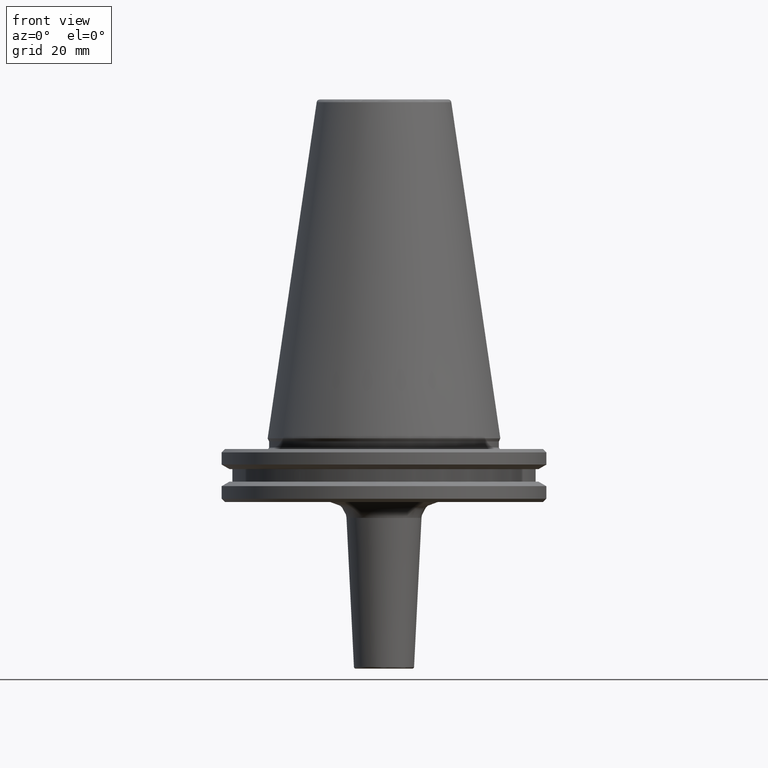
[diagram: clean part render]
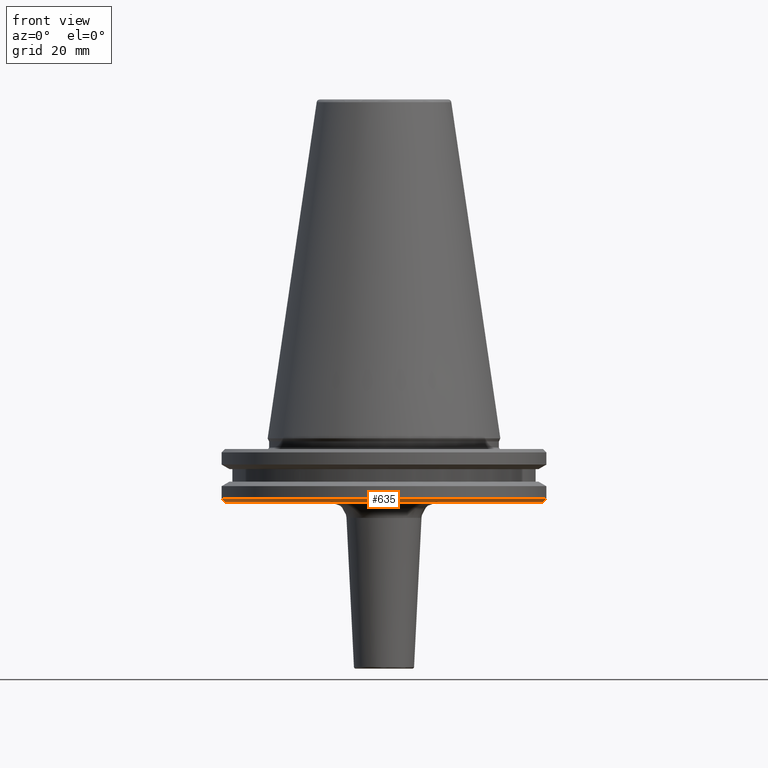
[diagram: same view with one face highlighted and labeled with its STEP entity id]
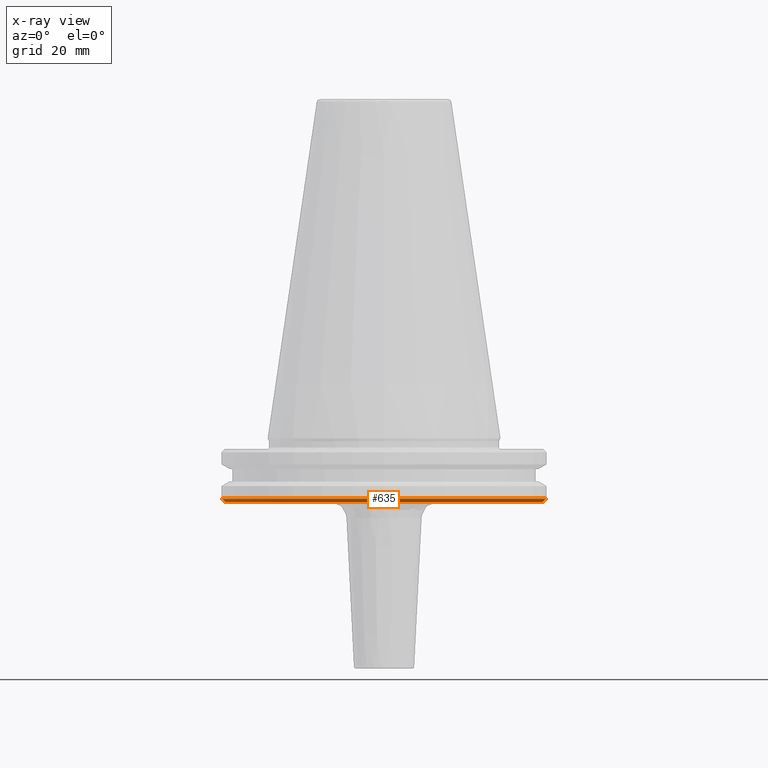
[diagram: x-ray of the same camera — body ghosted, the highlighted face saturated]
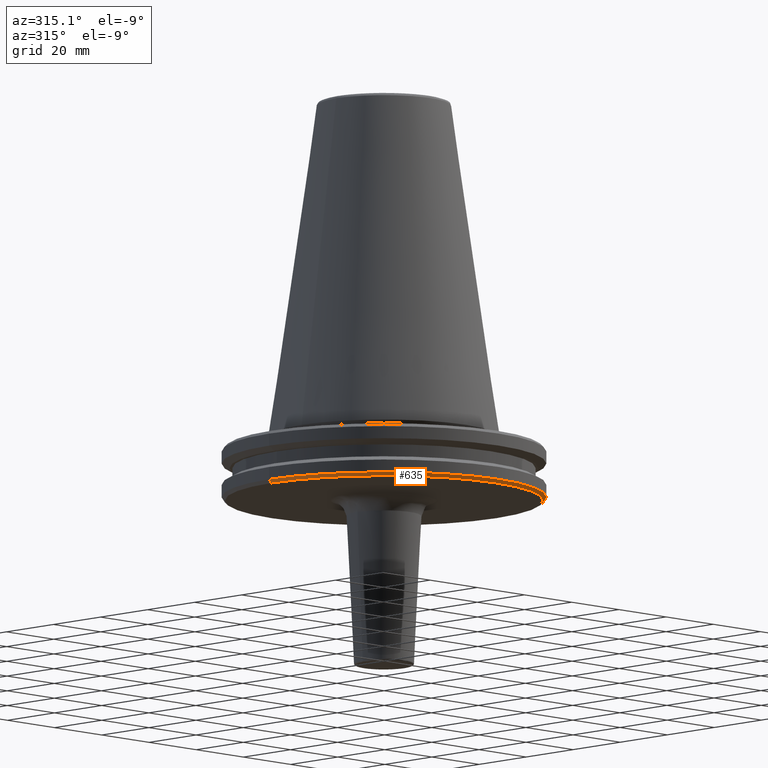
[diagram: same view with one face highlighted and labeled with its STEP entity id]
A machine part, front view. The second image highlights one B-rep face of the part: STEP entity #635.
The next image is the same camera in x-ray: the body ghosted, the highlighted face saturated — about 0% of this face is hidden behind the body in this view.
A second angle (auxiliary view) of the same face is appended — the face is thin or edge-on in the first view.
In plain terms, the highlighted conical surface has half-angle 45 deg.
Its self-contained STEP definition (entity closure, byte-faithful):
#54 = CONICAL_SURFACE ( 'NONE', #840, 48.63284271247462700, 0.7853981633974528300 ) ;
#94 = CIRCLE ( 'NONE', #1468, 47.74999999999973700 ) ;
#143 = EDGE_CURVE ( 'NONE', #1196, #918, #274, .T. ) ;
#148 = EDGE_CURVE ( 'NONE', #1146, #918, #744, .T. ) ;
#265 = FACE_OUTER_BOUND ( 'NONE', #1209, .T. ) ;
#272 = ORIENTED_EDGE ( 'NONE', *, *, #143, .T. ) ;
#274 = LINE ( 'NONE', #690, #1028 ) ;
#370 = CARTESIAN_POINT ( 'NONE',  ( -48.75000000000049700, 5.970153145843407900E-015, -18.09999999999950400 ) ) ;
#430 = AXIS2_PLACEMENT_3D ( 'NONE', #526, #733, #712 ) ;
#462 = ORIENTED_EDGE ( 'NONE', *, *, #1059, .F. ) ;
#526 = CARTESIAN_POINT ( 'NONE',  ( 0.0000000000000000000, 0.0000000000000000000, -18.09999999999950400 ) ) ;
#542 = VECTOR ( 'NONE', #959, 1000.000000000000000 ) ;
#635 = ADVANCED_FACE ( 'NONE', ( #265 ), #54, .T. ) ;
#647 = DIRECTION ( 'NONE',  ( 0.0000000000000000000, 0.0000000000000000000, 1.000000000000000000 ) ) ;
#655 = CARTESIAN_POINT ( 'NONE',  ( 0.0000000000000000000, 0.0000000000000000000, -18.21715728752537400 ) ) ;
#676 = DIRECTION ( 'NONE',  ( 1.000000000000000000, 0.0000000000000000000, 0.0000000000000000000 ) ) ;
#690 = CARTESIAN_POINT ( 'NONE',  ( 48.63284271247462700, 0.0000000000000000000, -18.21715728752537400 ) ) ;
#712 = DIRECTION ( 'NONE',  ( 1.000000000000000000, 0.0000000000000000000, 0.0000000000000000000 ) ) ;
#733 = DIRECTION ( 'NONE',  ( -0.0000000000000000000, -0.0000000000000000000, 1.000000000000000000 ) ) ;
#744 = CIRCLE ( 'NONE', #430, 48.75000000000017100 ) ;
#745 = ORIENTED_EDGE ( 'NONE', *, *, #969, .T. ) ;
#761 = DIRECTION ( 'NONE',  ( 0.7071067811865506800, 0.0000000000000000000, 0.7071067811865443500 ) ) ;
#804 = DIRECTION ( 'NONE',  ( -0.0000000000000000000, -0.0000000000000000000, 1.000000000000000000 ) ) ;
#840 = AXIS2_PLACEMENT_3D ( 'NONE', #655, #647, #676 ) ;
#911 = CARTESIAN_POINT ( 'NONE',  ( 48.75000000000049700, 0.0000000000000000000, -18.09999999999950400 ) ) ;
#918 = VERTEX_POINT ( 'NONE', #911 ) ;
#922 = CARTESIAN_POINT ( 'NONE',  ( -47.74999999999973700, 5.908920805885974100E-015, -19.09999999999993700 ) ) ;
#959 = DIRECTION ( 'NONE',  ( -0.7071067811865506800, 8.659560562354971100E-017, 0.7071067811865443500 ) ) ;
#969 = EDGE_CURVE ( 'NONE', #1043, #1196, #94, .T. ) ;
#1001 = CARTESIAN_POINT ( 'NONE',  ( -48.63284271247462700, 5.955805516126872900E-015, -18.21715728752537400 ) ) ;
#1028 = VECTOR ( 'NONE', #761, 1000.000000000000000 ) ;
#1043 = VERTEX_POINT ( 'NONE', #922 ) ;
#1059 = EDGE_CURVE ( 'NONE', #1043, #1146, #1483, .T. ) ;
#1129 = ORIENTED_EDGE ( 'NONE', *, *, #148, .F. ) ;
#1145 = CARTESIAN_POINT ( 'NONE',  ( 0.0000000000000000000, 0.0000000000000000000, -19.09999999999993700 ) ) ;
#1146 = VERTEX_POINT ( 'NONE', #370 ) ;
#1196 = VERTEX_POINT ( 'NONE', #1494 ) ;
#1209 = EDGE_LOOP ( 'NONE', ( #462, #745, #272, #1129 ) ) ;
#1382 = DIRECTION ( 'NONE',  ( 1.000000000000000000, 0.0000000000000000000, 0.0000000000000000000 ) ) ;
#1468 = AXIS2_PLACEMENT_3D ( 'NONE', #1145, #804, #1382 ) ;
#1483 = LINE ( 'NONE', #1001, #542 ) ;
#1494 = CARTESIAN_POINT ( 'NONE',  ( 47.74999999999973700, 0.0000000000000000000, -19.09999999999993700 ) ) ;